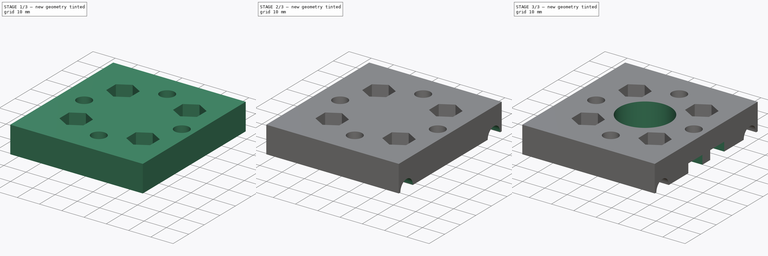
[diagram: build sequence overview — one tinted view per stage of 3, left to right]
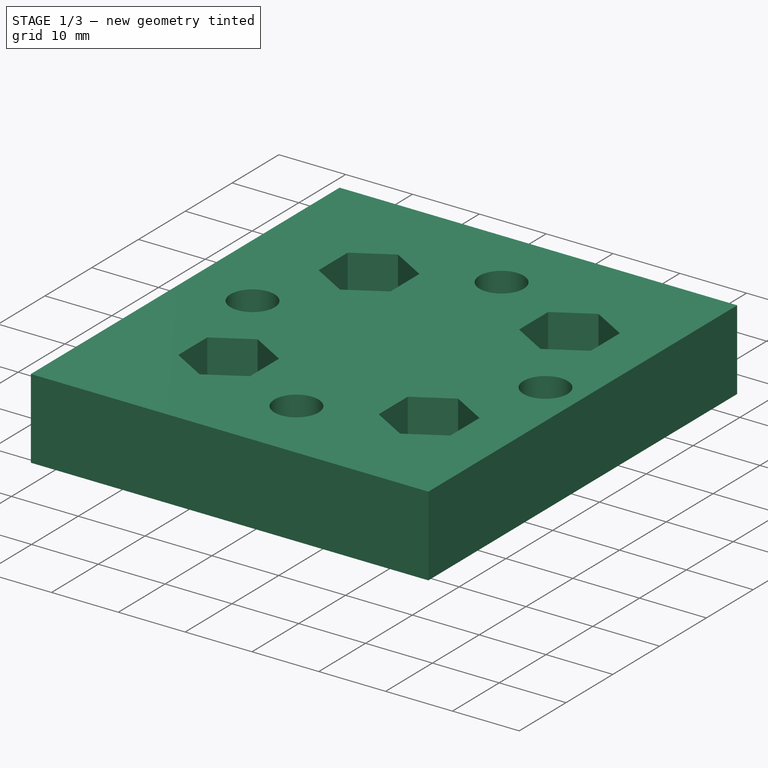
[diagram: stage 1 of 3 — iso view after this stage's code; geometry added in this stage tinted green]
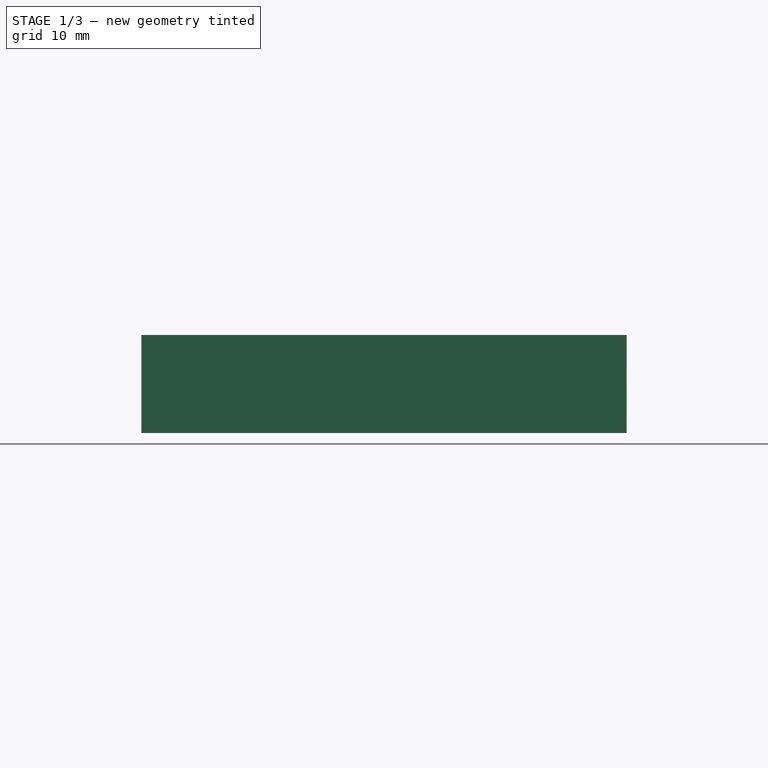
[diagram: stage 1 of 3 — front view after this stage's code; geometry added in this stage tinted green]
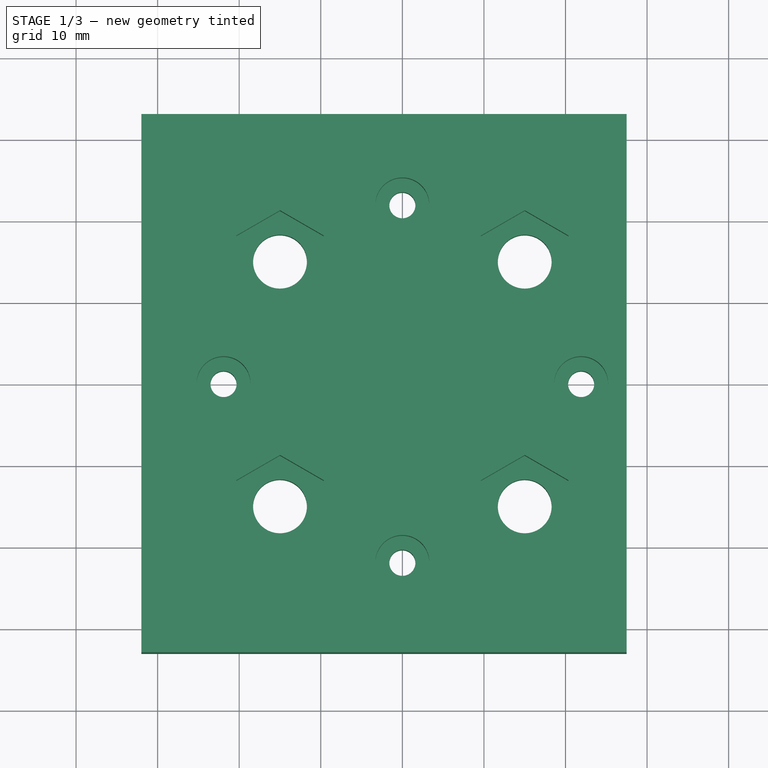
[diagram: stage 1 of 3 — top view after this stage's code; geometry added in this stage tinted green]
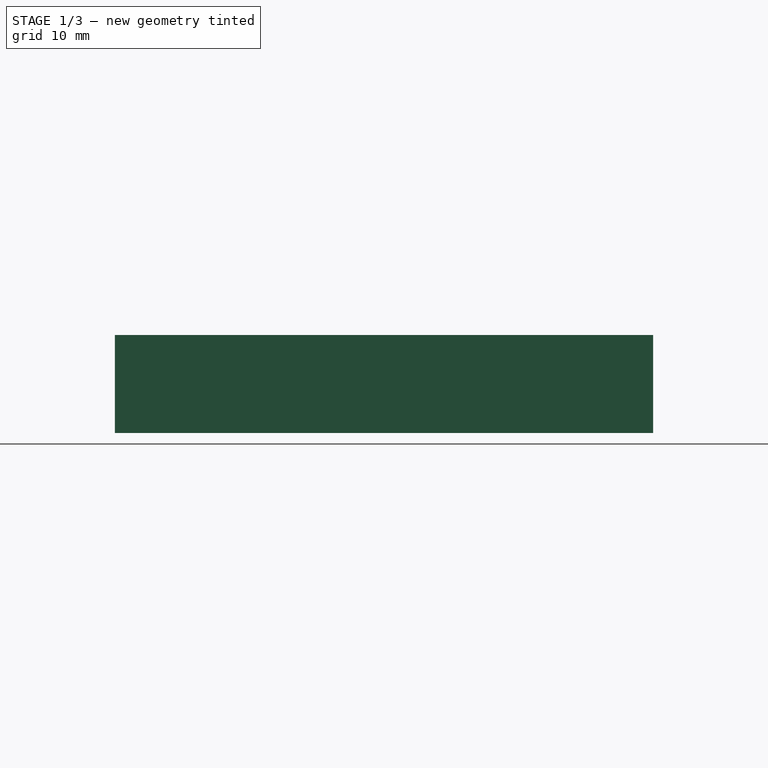
[diagram: stage 1 of 3 — right view after this stage's code; geometry added in this stage tinted green]
FCSTD DOCUMENT  (FreeCAD 0.18R16131 (Git))
Label: motorSide_8mm_rods
License: All rights reserved
LicenseURL: http://en.wikipedia.org/wiki/All_rights_reserved
objects: Sketcher::SketchObject×8, PartDesign::Pocket×7, PartDesign::Pad×1
note: 24 computed .brp shape members not serialized (recipe doc carries the construction recipe); baked Part::Feature solids carry a one-line shape summary decoded from their .brp

FEATURE [Sketcher::SketchObject] Sketch  label="MotorBlockSketch"
  MapMode = 5
  sketch-geometry (5):
    g0: LineSegment StartX=-32 StartY=33 StartZ=0 EndX=27.5 EndY=33 EndZ=0
    g1: LineSegment StartX=27.5 StartY=33 StartZ=0 EndX=27.5 EndY=-33 EndZ=0
    g2: LineSegment StartX=27.5 StartY=-33 StartZ=0 EndX=-32 EndY=-33 EndZ=0
    g3: LineSegment StartX=-32 StartY=-33 StartZ=0 EndX=-32 EndY=33 EndZ=0
    g4: GeomPoint [constr] X=-32 Y=0 Z=0
  constraints (13):
    c: Coincident(g0,g1)
    c: Coincident(g1,g2)
    c: Coincident(g2,g3)
    c: Coincident(g3,g0)
    c: Horizontal(g0)
    c: Horizontal(g2)
    c: Vertical(g1)
    c: Vertical(g3)
    c: Symmetric(g0,g2,g4)
    c: DistanceY(g4,g-1) = 0
    c: DistanceX(g0,g-1) = 32
    c: DistanceX(g-1,g0) = 27.5
    c: DistanceY(g2,g0) = 66
FEATURE [PartDesign::Pad] Pad  label="MotorBlockPad"
  Length = 12
  Length2 = 100
  Profile = -> Sketch
  Type = 0
FEATURE [Sketcher::SketchObject] Sketch001  label="NutCatcherFrontSketch"
  MapMode = 5
  Placement = pos=(0,0,12) rot=(0,0,1;0rad)
  Support = -> [Pad]
  sketch-geometry (43):
    g0: LineSegment [constr] StartX=-15 StartY=15 StartZ=0 EndX=15 EndY=15 EndZ=0
    g1: LineSegment [constr] StartX=15 StartY=15 StartZ=0 EndX=15 EndY=-15 EndZ=0
    g2: LineSegment [constr] StartX=15 StartY=-15 StartZ=0 EndX=-15 EndY=-15 EndZ=0
    g3: LineSegment [constr] StartX=-15 StartY=-15 StartZ=0 EndX=-15 EndY=15 EndZ=0
    g4: GeomPoint [constr] X=-15 Y=0 Z=0
    g5: GeomPoint [constr] X=0 Y=15 Z=0
    g6: LineSegment [constr] StartX=21.9203 StartY=8.0007e-12 StartZ=0 EndX=-8.0007e-12 EndY=21.9203 EndZ=0
    g7: LineSegment [constr] StartX=-8.0007e-12 StartY=21.9203 StartZ=0 EndX=-21.9203 EndY=-8.0007e-12 EndZ=0
    g8: LineSegment [constr] StartX=-21.9203 StartY=-8.0007e-12 StartZ=0 EndX=8.0007e-12 EndY=-21.9203 EndZ=0
    g9: LineSegment [constr] StartX=8.0007e-12 StartY=-21.9203 StartZ=0 EndX=21.9203 EndY=8.0007e-12 EndZ=0
    g10: Circle [constr] CenterX=0 CenterY=0 CenterZ=0 NormalX=0 NormalY=0 NormalZ=1 AngleXU=0 Radius=21.9203
    g11: LineSegment StartX=-9.63064 StartY=18.1 StartZ=0 EndX=-15 EndY=21.2 EndZ=0
    g12: LineSegment StartX=-15 StartY=21.2 StartZ=0 EndX=-20.3694 EndY=18.1 EndZ=0
    g13: LineSegment StartX=-20.3694 StartY=18.1 StartZ=0 EndX=-20.3694 EndY=11.9 EndZ=0
    g14: LineSegment StartX=-20.3694 StartY=11.9 StartZ=0 EndX=-15 EndY=8.8 EndZ=0
    g15: LineSegment StartX=-15 StartY=8.8 StartZ=0 EndX=-9.63064 EndY=11.9 EndZ=0
    g16: LineSegment StartX=-9.63064 StartY=11.9 StartZ=0 EndX=-9.63064 EndY=18.1 EndZ=0
    g17: Circle [constr] CenterX=-15 CenterY=15 CenterZ=0 NormalX=0 NormalY=0 NormalZ=1 AngleXU=0 Radius=6.2
    g18: LineSegment StartX=20.3694 StartY=18.1 StartZ=0 EndX=15 EndY=21.2 EndZ=0
    g19: LineSegment StartX=15 StartY=21.2 StartZ=0 EndX=9.63064 EndY=18.1 EndZ=0
    g20: LineSegment StartX=9.63064 StartY=18.1 StartZ=0 EndX=9.63064 EndY=11.9 EndZ=0
    g21: LineSegment StartX=9.63064 StartY=11.9 StartZ=0 EndX=15 EndY=8.8 EndZ=0
    g22: LineSegment StartX=15 StartY=8.8 StartZ=0 EndX=20.3694 EndY=11.9 EndZ=0
    g23: LineSegment StartX=20.3694 StartY=11.9 StartZ=0 EndX=20.3694 EndY=18.1 EndZ=0
    g24: Circle [constr] CenterX=15 CenterY=15 CenterZ=0 NormalX=0 NormalY=0 NormalZ=1 AngleXU=0 Radius=6.2
    g25: LineSegment StartX=-20.3694 StartY=-18.1 StartZ=0 EndX=-15 EndY=-21.2 EndZ=0
    g26: LineSegment StartX=-15 StartY=-21.2 StartZ=0 EndX=-9.63064 EndY=-18.1 EndZ=0
    g27: LineSegment StartX=-9.63064 StartY=-18.1 StartZ=0 EndX=-9.63064 EndY=-11.9 EndZ=0
    g28: LineSegment StartX=-9.63064 StartY=-11.9 StartZ=0 EndX=-15 EndY=-8.8 EndZ=0
    g29: LineSegment StartX=-15 StartY=-8.8 StartZ=0 EndX=-20.3694 EndY=-11.9 EndZ=0
    g30: LineSegment StartX=-20.3694 StartY=-11.9 StartZ=0 EndX=-20.3694 EndY=-18.1 EndZ=0
    g31: Circle [constr] CenterX=-15 CenterY=-15 CenterZ=0 NormalX=0 NormalY=0 NormalZ=1 AngleXU=0 Radius=6.2
    g32: LineSegment StartX=20.3694 StartY=-11.9 StartZ=0 EndX=15 EndY=-8.8 EndZ=0
    g33: LineSegment StartX=15 StartY=-8.8 StartZ=0 EndX=9.63064 EndY=-11.9 EndZ=0
    g34: LineSegment StartX=9.63064 StartY=-11.9 StartZ=0 EndX=9.63064 EndY=-18.1 EndZ=0
    g35: LineSegment StartX=9.63064 StartY=-18.1 StartZ=0 EndX=15 EndY=-21.2 EndZ=0
    g36: LineSegment StartX=15 StartY=-21.2 StartZ=0 EndX=20.3694 EndY=-18.1 EndZ=0
    g37: LineSegment StartX=20.3694 StartY=-18.1 StartZ=0 EndX=20.3694 EndY=-11.9 EndZ=0
    g38: Circle [constr] CenterX=15 CenterY=-15 CenterZ=0 NormalX=0 NormalY=0 NormalZ=1 AngleXU=0 Radius=6.2
    g39: Circle CenterX=-8.0007e-12 CenterY=21.9203 CenterZ=0 NormalX=0 NormalY=0 NormalZ=1 AngleXU=0 Radius=3.3
    g40: Circle CenterX=-21.9203 CenterY=-8.0007e-12 CenterZ=0 NormalX=0 NormalY=0 NormalZ=1 AngleXU=0 Radius=3.3
    g41: Circle CenterX=21.9203 CenterY=8.0007e-12 CenterZ=0 NormalX=0 NormalY=0 NormalZ=1 AngleXU=0 Radius=3.3
    g42: Circle CenterX=8.0007e-12 CenterY=-21.9203 CenterZ=0 NormalX=0 NormalY=0 NormalZ=1 AngleXU=0 Radius=3.3
  constraints (100):
    c: Coincident(g0,g1)
    c: Coincident(g1,g2)
    c: Coincident(g2,g3)
    c: Coincident(g3,g0)
    c: Horizontal(g0)
    c: Horizontal(g2)
    c: Vertical(g1)
    c: Vertical(g3)
    c: Symmetric(g0,g0,g5)
    c: Symmetric(g0,g2,g4)
    c: Equal(g3,g0)
    c: DistanceX(g0,g0) = 30
    c: DistanceY(g4,g-1) = 0
    c: DistanceX(g-1,g5) = 0
    c: Coincident(g6,g7)
    c: Coincident(g7,g8)
    c: Coincident(g8,g9)
    c: Coincident(g9,g6)
    c: Equal(g6,g7)
    c: Equal(g6,g8)
    c: Equal(g6,g9)
    c: PointOnObject(g6,g10)
    c: PointOnObject(g7,g10)
    c: PointOnObject(g8,g10)
    c: PointOnObject(g9,g10)
    c: Angle(g7,g0) = 2.35619
    c: Coincident(g-1,g10)
    c: Distance(g6) = 31
    c: Coincident(g11,g12)
    c: Coincident(g12,g13)
    c: Coincident(g13,g14)
    c: Coincident(g14,g15)
    c: Coincident(g15,g16)
    c: Coincident(g16,g11)
    c: Equal(g11, g12-g16) x5
    c: PointOnObject(g11,g17)
    c: PointOnObject(g12,g17)
    c: PointOnObject(g13,g17)
    c: PointOnObject(g14,g17)
    c: PointOnObject(g15,g17)
    c: PointOnObject(g16,g17)
    c: Vertical(g16)
    c: Coincident(g0,g17)
    c: Coincident(g18,g19)
    c: Coincident(g19,g20)
    c: Coincident(g20,g21)
    c: Coincident(g21,g22)
    c: Coincident(g22,g23)
    c: Coincident(g23,g18)
    c: Equal(g18, g19-g23) x5
    c: PointOnObject(g18,g24)
    c: PointOnObject(g19,g24)
    c: PointOnObject(g20,g24)
    c: PointOnObject(g21,g24)
    c: PointOnObject(g22,g24)
    c: PointOnObject(g23,g24)
    c: Vertical(g23)
    c: Coincident(g24,g0)
    c: Coincident(g25,g26)
    c: Coincident(g26,g27)
    c: Coincident(g27,g28)
    c: Coincident(g28,g29)
    c: Coincident(g29,g30)
    c: Coincident(g30,g25)
    c: Equal(g25, g26-g30) x5
    c: PointOnObject(g25,g31)
    c: PointOnObject(g26,g31)
    c: PointOnObject(g27,g31)
    c: PointOnObject(g28,g31)
    c: PointOnObject(g29,g31)
    c: PointOnObject(g30,g31)
    c: Vertical(g30)
    c: Coincident(g2,g31)
    c: Coincident(g32,g33)
    c: Coincident(g33,g34)
    c: Coincident(g34,g35)
    c: Coincident(g35,g36)
    c: Coincident(g36,g37)
    c: Coincident(g37,g32)
    c: Equal(g32, g33-g37) x5
    c: PointOnObject(g32,g38)
    c: PointOnObject(g33,g38)
    c: PointOnObject(g34,g38)
    c: PointOnObject(g35,g38)
    c: PointOnObject(g36,g38)
    c: PointOnObject(g37,g38)
    c: Vertical(g37)
    c: Coincident(g1,g38)
    c: Equal(g38,g31)
    c: Equal(g31,g24)
    c: Equal(g24,g17)
    c: Radius(g17) = 6.2
    c: Equal(g42,g41)
    c: Equal(g41,g39)
    c: Equal(g39,g40)
    c: Coincident(g39,g6)
    c: Coincident(g6,g41)
    c: Coincident(g7,g40)
    c: Coincident(g8,g42)
    c: Radius(g39) = 3.3
FEATURE [PartDesign::Pocket] Pocket  label="NutCatcherFrontPocket"
  Length = 6
  Length2 = 100
  Profile = -> Sketch001
  Type = 0
FEATURE [Sketcher::SketchObject] Sketch002  label="BoltHolesFrontSketch"
  MapMode = 5
  Placement = pos=(0,0,6) rot=(0,0,1;0rad)
  Support = -> [Pocket]
  sketch-geometry (19):
    g0: LineSegment [constr] StartX=-15 StartY=15 StartZ=0 EndX=15 EndY=15 EndZ=0
    g1: LineSegment [constr] StartX=15 StartY=15 StartZ=0 EndX=15 EndY=-15 EndZ=0
    g2: LineSegment [constr] StartX=15 StartY=-15 StartZ=0 EndX=-15 EndY=-15 EndZ=0
    g3: LineSegment [constr] StartX=-15 StartY=-15 StartZ=0 EndX=-15 EndY=15 EndZ=0
    g4: GeomPoint [constr] X=0 Y=15 Z=0
    g5: GeomPoint [constr] X=-15 Y=0 Z=0
    g6: LineSegment [constr] StartX=0 StartY=21.9203 StartZ=0 EndX=-21.9203 EndY=0 EndZ=0
    g7: LineSegment [constr] StartX=-21.9203 StartY=0 StartZ=0 EndX=0 EndY=-21.9203 EndZ=0
    g8: LineSegment [constr] StartX=0 StartY=-21.9203 StartZ=0 EndX=21.9203 EndY=0 EndZ=0
    g9: LineSegment [constr] StartX=21.9203 StartY=0 StartZ=0 EndX=0 EndY=21.9203 EndZ=0
    g10: Circle [constr] CenterX=0 CenterY=0 CenterZ=0 NormalX=0 NormalY=0 NormalZ=1 AngleXU=0 Radius=21.9203
    g11: Circle CenterX=-15 CenterY=15 CenterZ=0 NormalX=0 NormalY=0 NormalZ=1 AngleXU=0 Radius=3.3
    g12: Circle CenterX=0 CenterY=21.9203 CenterZ=0 NormalX=0 NormalY=0 NormalZ=1 AngleXU=0 Radius=1.6
    g13: Circle CenterX=15 CenterY=15 CenterZ=0 NormalX=0 NormalY=0 NormalZ=1 AngleXU=0 Radius=3.3
    g14: Circle CenterX=-15 CenterY=-15 CenterZ=0 NormalX=0 NormalY=0 NormalZ=1 AngleXU=0 Radius=3.3
    g15: Circle CenterX=15 CenterY=-15 CenterZ=0 NormalX=0 NormalY=0 NormalZ=1 AngleXU=0 Radius=3.3
    g16: Circle CenterX=0 CenterY=-21.9203 CenterZ=0 NormalX=0 NormalY=0 NormalZ=1 AngleXU=0 Radius=1.6
    g17: Circle CenterX=21.9203 CenterY=0 CenterZ=0 NormalX=0 NormalY=0 NormalZ=1 AngleXU=0 Radius=1.6
    g18: Circle CenterX=-21.9203 CenterY=0 CenterZ=0 NormalX=0 NormalY=0 NormalZ=1 AngleXU=0 Radius=1.6
  constraints (44):
    c: Coincident(g0,g1)
    c: Coincident(g1,g2)
    c: Coincident(g2,g3)
    c: Coincident(g3,g0)
    c: Horizontal(g0)
    c: Horizontal(g2)
    c: Vertical(g1)
    c: Vertical(g3)
    c: Symmetric(g0,g0,g4)
    c: Symmetric(g0,g2,g5)
    c: DistanceY(g5,g-1) = 0
    c: DistanceX(g-1,g4) = 0
    c: Equal(g3,g0)
    c: DistanceX(g0,g0) = 30
    c: Coincident(g6,g7)
    c: Coincident(g7,g8)
    c: Coincident(g8,g9)
    c: Coincident(g9,g6)
    c: Equal(g6,g7)
    c: Equal(g6,g8)
    c: Equal(g6,g9)
    c: PointOnObject(g6,g10)
    c: PointOnObject(g7,g10)
    c: PointOnObject(g8,g10)
    c: PointOnObject(g9,g10)
    c: Angle(g9,g0) = 0.785398
    c: Coincident(g-1,g10)
    c: Distance(g9) = 31
    c: Equal(g18,g12)
    c: Equal(g12,g17)
    c: Equal(g17,g16)
    c: Coincident(g12,g6)
    c: Coincident(g17,g8)
    c: Coincident(g16,g7)
    c: Coincident(g6,g18)
    c: Radius(g12) = 1.6
    c: Equal(g11,g13)
    c: Equal(g13,g15)
    c: Equal(g15,g14)
    c: Coincident(g11,g0)
    c: Coincident(g13,g0)
    c: Coincident(g15,g1)
    c: Coincident(g14,g2)
    c: Radius(g11) = 3.3
FEATURE [PartDesign::Pocket] Pocket001  label="BoltHolesFrontPocket"
  Length = 5
  Length2 = 100
  Profile = -> Sketch002
  Type = 1
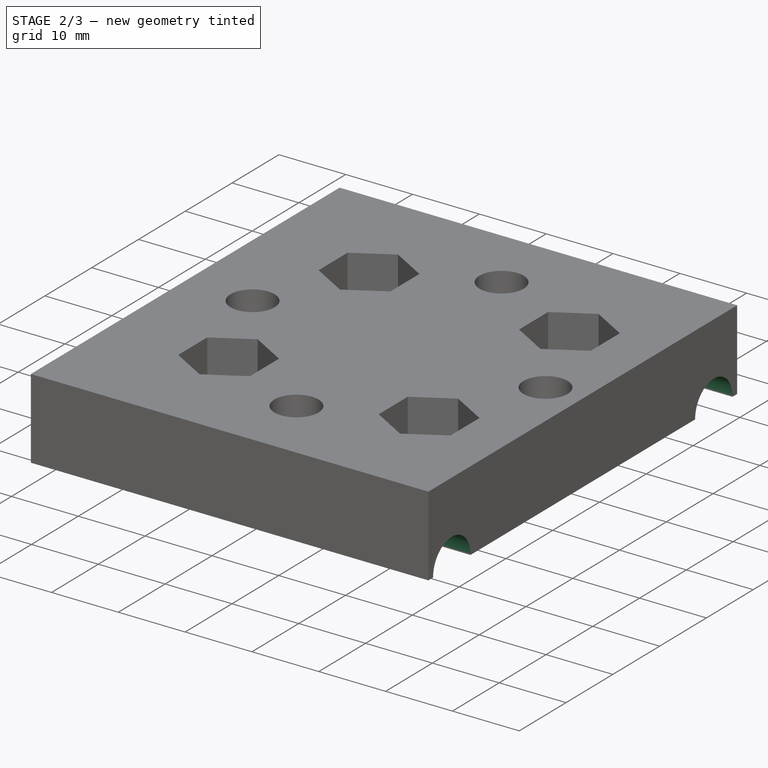
[diagram: stage 2 of 3 — iso view after this stage's code; geometry added in this stage tinted green]
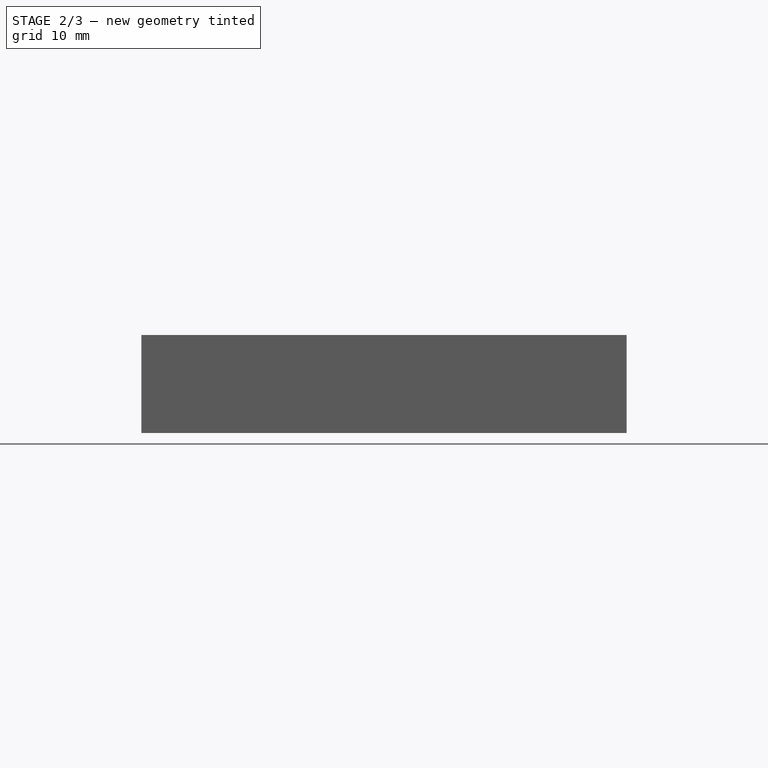
[diagram: stage 2 of 3 — front view after this stage's code; geometry added in this stage tinted green]
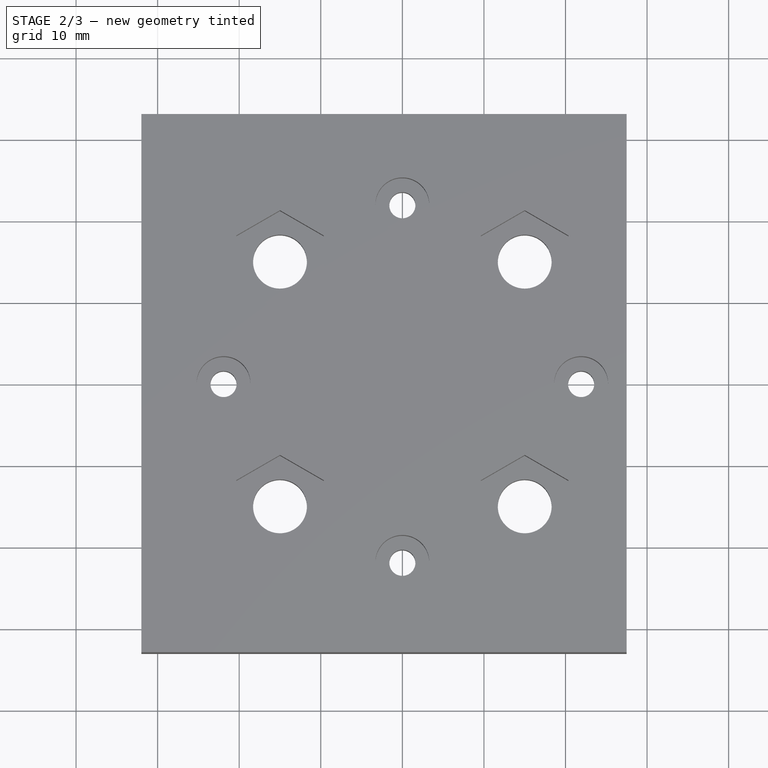
[diagram: stage 2 of 3 — top view after this stage's code; geometry added in this stage tinted green]
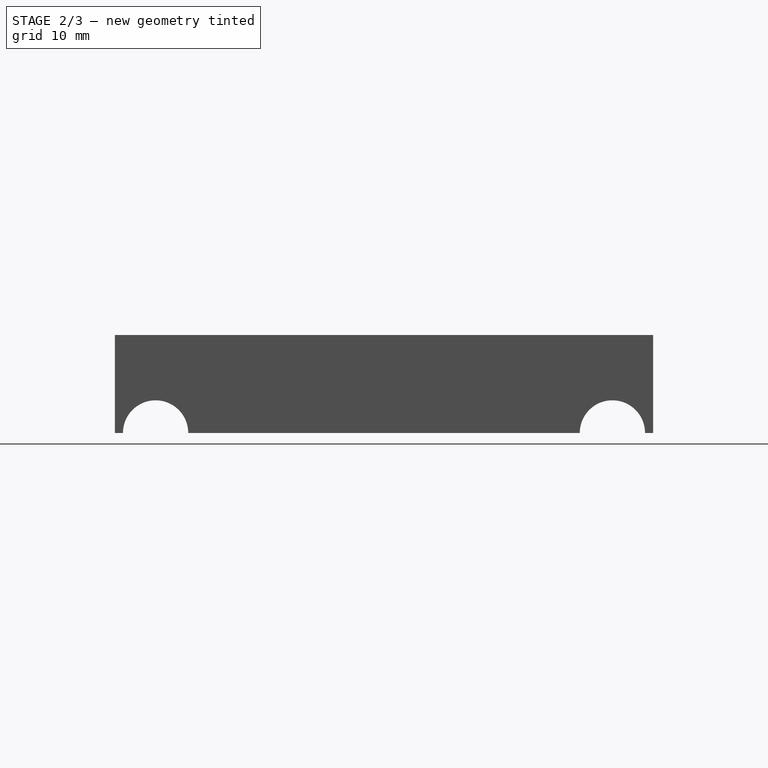
[diagram: stage 2 of 3 — right view after this stage's code; geometry added in this stage tinted green]
FEATURE [Sketcher::SketchObject] Sketch003  label="RodHolderSketch"
  MapMode = 5
  Placement = pos=(27.5,0,0) rot=(0.57735,0.57735,0.57735;2.0944rad)
  Support = -> [Pocket001]
  sketch-geometry (4):
    g0: LineSegment [constr] StartX=0 StartY=0 StartZ=0 EndX=-28 EndY=0 EndZ=0
    g1: LineSegment [constr] StartX=0 StartY=0 StartZ=0 EndX=28 EndY=0 EndZ=0
    g2: Circle CenterX=-28 CenterY=0 CenterZ=0 NormalX=0 NormalY=0 NormalZ=1 AngleXU=0 Radius=4
    g3: Circle CenterX=28 CenterY=0 CenterZ=0 NormalX=0 NormalY=0 NormalZ=1 AngleXU=0 Radius=4
  constraints (10):
    c: Horizontal(g0)
    c: Horizontal(g1)
    c: Coincident(g0,g-1)
    c: Coincident(g-1,g1)
    c: Equal(g0,g1)
    c: DistanceX(g0,g0) = 28
    c: Equal(g2,g3)
    c: Coincident(g2,g0)
    c: Coincident(g1,g3)
    c: Radius(g2) = 4
FEATURE [PartDesign::Pocket] Pocket002  label="RodHolderPocket"
  Length = 5
  Length2 = 100
  Profile = -> Sketch003
  Type = 1
FEATURE [Sketcher::SketchObject] Sketch004  label="BoltHolesSideSketch"
  MapMode = 5
  Placement = pos=(-32,0,0) rot=(0.57735,-0.57735,-0.57735;2.0944rad)
  Support = -> [Pocket002]
  sketch-geometry (4):
    g0: LineSegment [constr] StartX=0 StartY=0 StartZ=0 EndX=-15 EndY=0 EndZ=0
    g1: LineSegment [constr] StartX=0 StartY=0 StartZ=0 EndX=15 EndY=0 EndZ=0
    g2: Circle CenterX=-15 CenterY=0 CenterZ=0 NormalX=0 NormalY=0 NormalZ=1 AngleXU=0 Radius=3.3
    g3: Circle CenterX=15 CenterY=0 CenterZ=0 NormalX=0 NormalY=0 NormalZ=1 AngleXU=0 Radius=3.3
  constraints (10):
    c: Horizontal(g0)
    c: Horizontal(g1)
    c: Coincident(g0,g-1)
    c: Coincident(g-1,g1)
    c: Equal(g0,g1)
    c: DistanceX(g0,g0) = 15
    c: Equal(g2,g3)
    c: Coincident(g0,g2)
    c: Coincident(g1,g3)
    c: Radius(g2) = 3.3
FEATURE [PartDesign::Pocket] Pocket003  label="BoltHolesSidePocket"
  Length = 5.5
  Length2 = 100
  Profile = -> Sketch004
  Type = 0
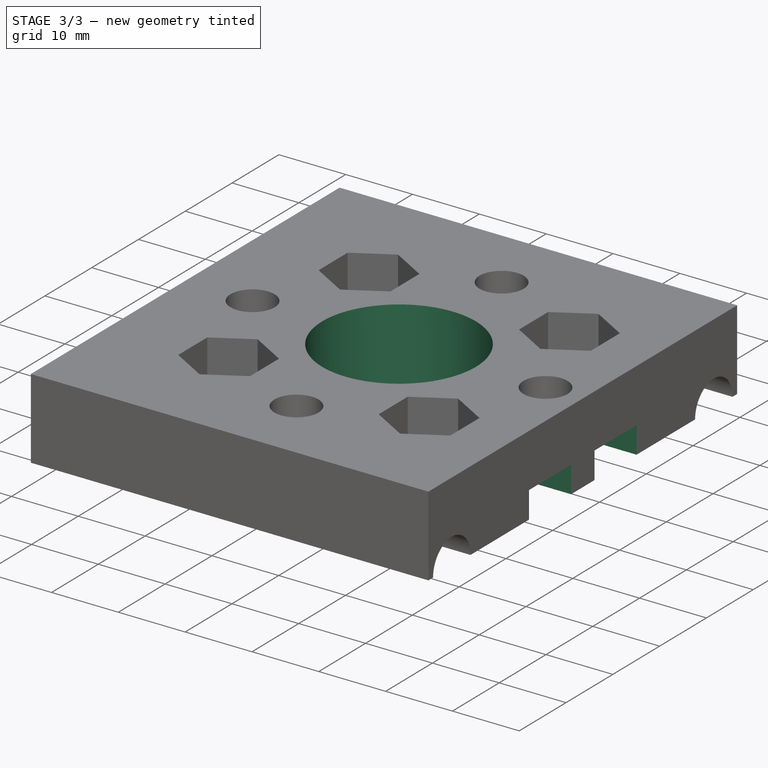
[diagram: stage 3 of 3 — iso view after this stage's code; geometry added in this stage tinted green]
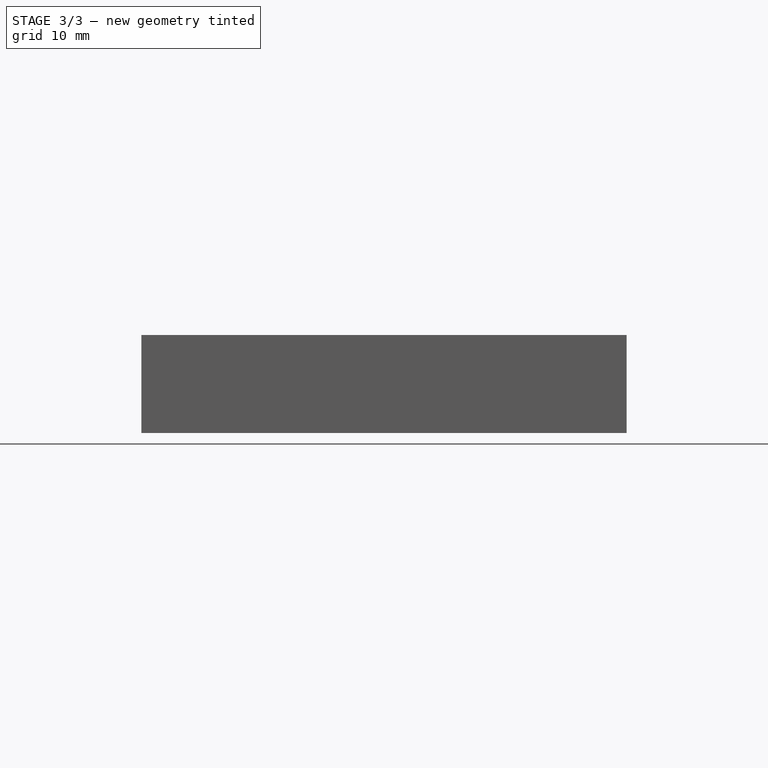
[diagram: stage 3 of 3 — front view after this stage's code; geometry added in this stage tinted green]
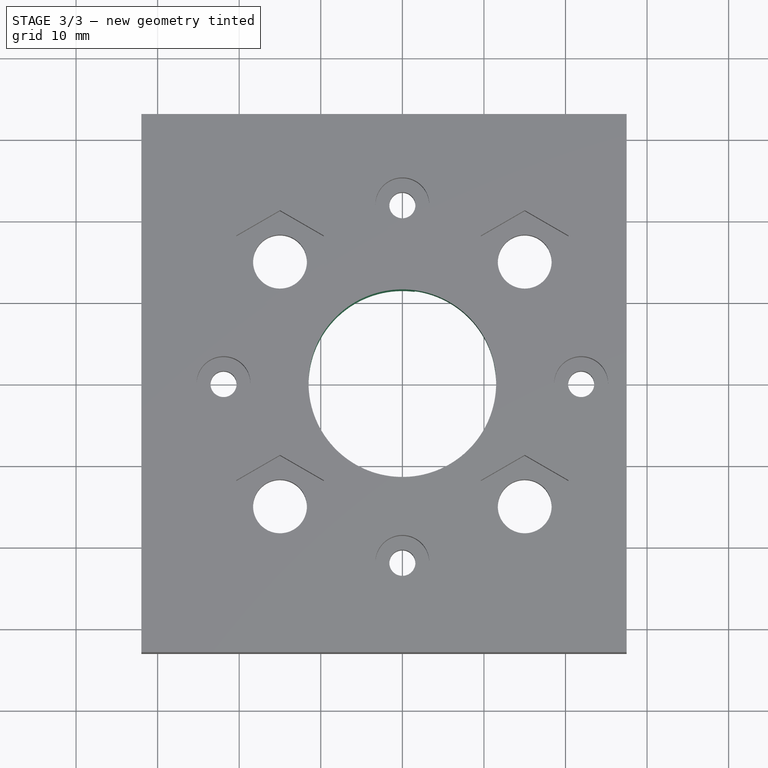
[diagram: stage 3 of 3 — top view after this stage's code; geometry added in this stage tinted green]
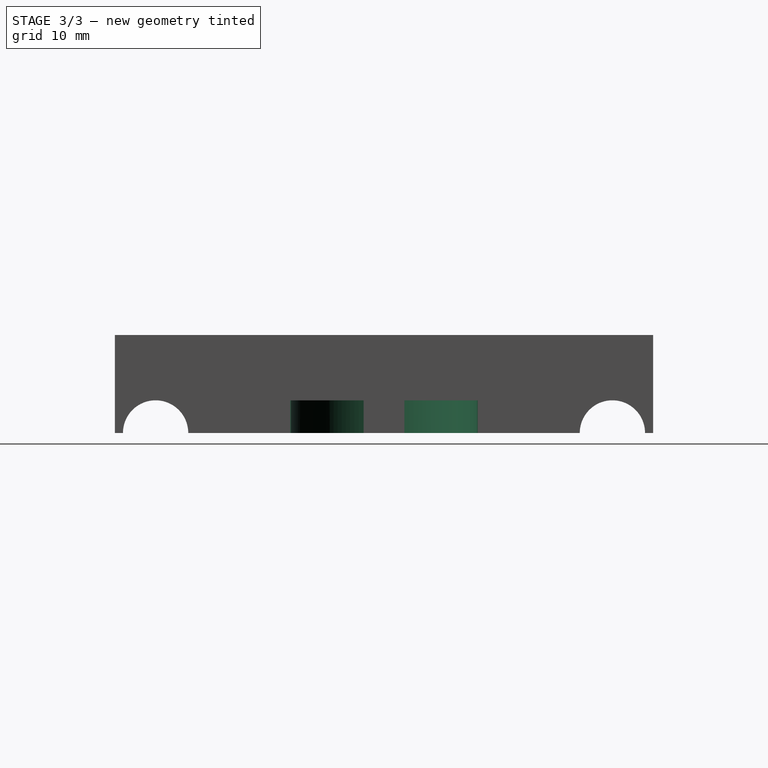
[diagram: stage 3 of 3 — right view after this stage's code; geometry added in this stage tinted green]
FEATURE [Sketcher::SketchObject] Sketch005  label="NutCatchersSideSketch"
  MapMode = 5
  Placement = pos=(-26.5,0,0) rot=(0.57735,-0.57735,-0.57735;2.0944rad)
  Support = -> [Pocket003]
  sketch-geometry (16):
    g0: LineSegment [constr] StartX=0 StartY=0 StartZ=0 EndX=-15 EndY=0 EndZ=0
    g1: LineSegment [constr] StartX=0 StartY=0 StartZ=0 EndX=15 EndY=0 EndZ=0
    g2: LineSegment StartX=-9.63064 StartY=3.1 StartZ=0 EndX=-15 EndY=6.2 EndZ=0
    g3: LineSegment StartX=-15 StartY=6.2 StartZ=0 EndX=-20.3694 EndY=3.1 EndZ=0
    g4: LineSegment StartX=-20.3694 StartY=3.1 StartZ=0 EndX=-20.3694 EndY=-3.1 EndZ=0
    g5: LineSegment StartX=-20.3694 StartY=-3.1 StartZ=0 EndX=-15 EndY=-6.2 EndZ=0
    g6: LineSegment StartX=-15 StartY=-6.2 StartZ=0 EndX=-9.63064 EndY=-3.1 EndZ=0
    g7: LineSegment StartX=-9.63064 StartY=-3.1 StartZ=0 EndX=-9.63064 EndY=3.1 EndZ=0
    g8: Circle [constr] CenterX=-15 CenterY=0 CenterZ=0 NormalX=0 NormalY=0 NormalZ=1 AngleXU=0 Radius=6.2
    g9: LineSegment StartX=9.63064 StartY=-3.1 StartZ=0 EndX=15 EndY=-6.2 EndZ=0
    g10: LineSegment StartX=15 StartY=-6.2 StartZ=0 EndX=20.3694 EndY=-3.1 EndZ=0
    g11: LineSegment StartX=20.3694 StartY=-3.1 StartZ=0 EndX=20.3694 EndY=3.1 EndZ=0
    g12: LineSegment StartX=20.3694 StartY=3.1 StartZ=0 EndX=15 EndY=6.2 EndZ=0
    g13: LineSegment StartX=15 StartY=6.2 StartZ=0 EndX=9.63064 EndY=3.1 EndZ=0
    g14: LineSegment StartX=9.63064 StartY=3.1 StartZ=0 EndX=9.63064 EndY=-3.1 EndZ=0
    g15: Circle [constr] CenterX=15 CenterY=0 CenterZ=0 NormalX=0 NormalY=0 NormalZ=1 AngleXU=0 Radius=6.2
  constraints (38):
    c: Horizontal(g0)
    c: Horizontal(g1)
    c: Coincident(g0,g-1)
    c: Coincident(g-1,g1)
    c: Equal(g0,g1)
    c: DistanceX(g0,g0) = 15
    c: Coincident(g2,g3)
    c: Coincident(g3,g4)
    c: Coincident(g4,g5)
    c: Coincident(g5,g6)
    c: Coincident(g6,g7)
    c: Coincident(g7,g2)
    c: Equal(g2, g3-g7) x5
    c: PointOnObject(g2,g8)
    c: PointOnObject(g3,g8)
    c: PointOnObject(g4,g8)
    c: PointOnObject(g5,g8)
    c: PointOnObject(g6,g8)
    c: PointOnObject(g7,g8)
    c: Vertical(g7)
    c: Coincident(g0,g8)
    c: Coincident(g9,g10)
    c: Coincident(g10,g11)
    c: Coincident(g11,g12)
    c: Coincident(g12,g13)
    c: Coincident(g13,g14)
    c: Coincident(g14,g9)
    c: Equal(g9, g10-g14) x5
    c: PointOnObject(g9,g15)
    c: PointOnObject(g10,g15)
    c: PointOnObject(g11,g15)
    c: PointOnObject(g12,g15)
    c: PointOnObject(g13,g15)
    c: PointOnObject(g14,g15)
    c: Vertical(g14)
    c: Coincident(g1,g15)
    c: Equal(g15,g8)
    c: Radius(g8) = 6.2
FEATURE [PartDesign::Pocket] Pocket004  label="NutCatchersSidePocket"
  Length = 5.5
  Length2 = 100
  Profile = -> Sketch005
  Type = 0
FEATURE [Sketcher::SketchObject] Sketch006  label="MotorHoleSketch"
  MapMode = 5
  Placement = pos=(0,0,12) rot=(0,0,1;0rad)
  Support = -> [Pocket004]
  sketch-geometry (1):
    g0: Circle CenterX=0 CenterY=0 CenterZ=0 NormalX=0 NormalY=0 NormalZ=1 AngleXU=0 Radius=11.5
  constraints (2):
    c: Coincident(g0,g-1)
    c: Radius(g0) = 11.5
FEATURE [PartDesign::Pocket] Pocket005  label="MotorHolePocket"
  Length = 5
  Length2 = 100
  Profile = -> Sketch006
  Type = 1
FEATURE [Sketcher::SketchObject] Sketch007  label="BeltPassageSketch"
  MapMode = 5
  Placement = pos=(27.5,0,0) rot=(0.57735,0.57735,0.57735;2.0944rad)
  Support = -> [Pocket005]
  sketch-geometry (10):
    g0: LineSegment [constr] StartX=0 StartY=0 StartZ=0 EndX=-2.5 EndY=0 EndZ=0
    g1: LineSegment [constr] StartX=0 StartY=0 StartZ=0 EndX=2.5 EndY=0 EndZ=0
    g2: LineSegment StartX=-11.5 StartY=4 StartZ=0 EndX=-2.5 EndY=4 EndZ=0
    g3: LineSegment StartX=-2.5 StartY=4 StartZ=0 EndX=-2.5 EndY=0 EndZ=0
    g4: LineSegment StartX=-2.5 StartY=0 StartZ=0 EndX=-11.5 EndY=0 EndZ=0
    g5: LineSegment StartX=-11.5 StartY=0 StartZ=0 EndX=-11.5 EndY=4 EndZ=0
    g6: LineSegment StartX=2.5 StartY=4 StartZ=0 EndX=11.5 EndY=4 EndZ=0
    g7: LineSegment StartX=11.5 StartY=4 StartZ=0 EndX=11.5 EndY=0 EndZ=0
    g8: LineSegment StartX=11.5 StartY=0 StartZ=0 EndX=2.5 EndY=0 EndZ=0
    g9: LineSegment StartX=2.5 StartY=0 StartZ=0 EndX=2.5 EndY=4 EndZ=0
  constraints (28):
    c: Horizontal(g0)
    c: Horizontal(g1)
    c: Coincident(g-1,g0)
    c: Coincident(g-1,g1)
    c: Equal(g0,g1)
    c: DistanceX(g0,g0) = 2.5
    c: Coincident(g2,g3)
    c: Coincident(g3,g4)
    c: Coincident(g4,g5)
    c: Coincident(g5,g2)
    c: Horizontal(g2)
    c: Horizontal(g4)
    c: Vertical(g3)
    c: Vertical(g5)
    c: Coincident(g6,g7)
    c: Coincident(g7,g8)
    c: Coincident(g8,g9)
    c: Coincident(g9,g6)
    c: Horizontal(g6)
    c: Horizontal(g8)
    c: Vertical(g7)
    c: Vertical(g9)
    c: Coincident(g0,g3)
    c: Coincident(g1,g8)
    c: Equal(g2,g6)
    c: Equal(g5,g9)
    c: DistanceX(g2,g2) = 9
    c: DistanceY(g5,g5) = 4
FEATURE [PartDesign::Pocket] Pocket006  label="BeltPassagePocket"
  Length = 26
  Length2 = 100
  Profile = -> Sketch007
  Type = 0
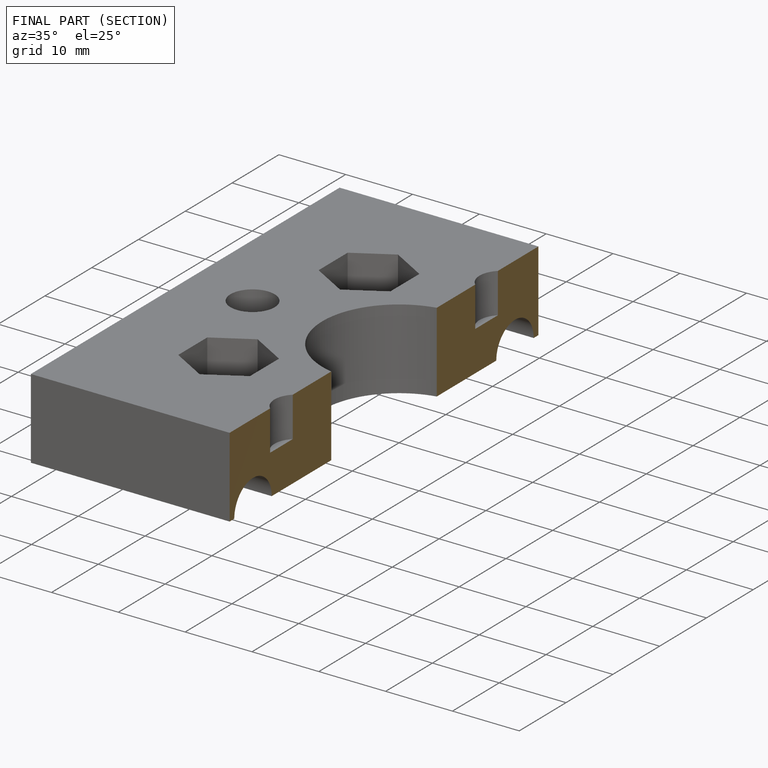
[diagram: finished part — half-section view (interior)]
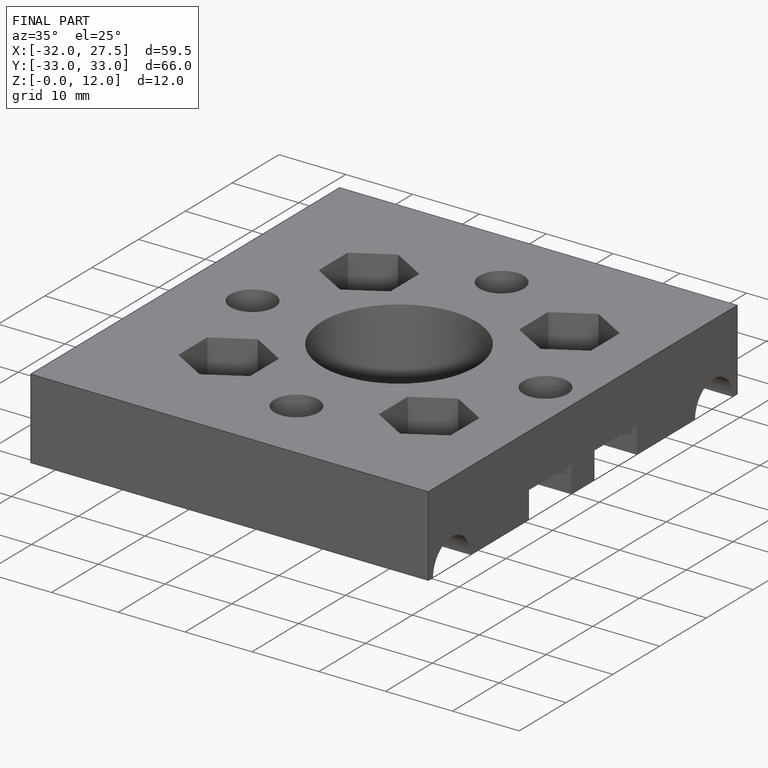
[diagram: finished part — iso view with bounding-box wireframe]
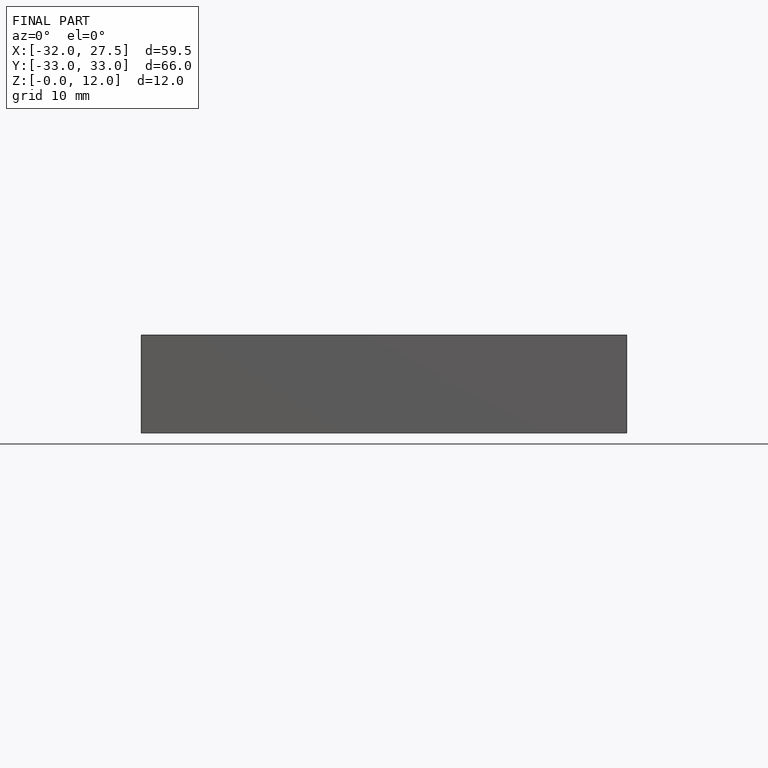
[diagram: finished part — front view with bounding-box wireframe]
